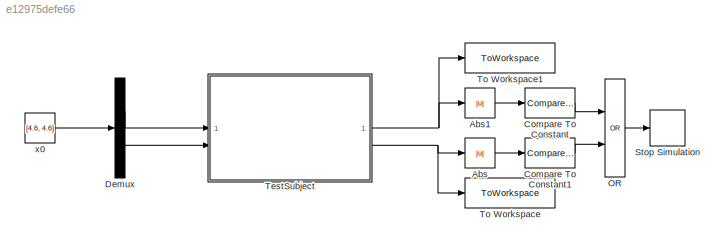
MODEL slx_e12975defe66
KIND model
CONFIG AbsTol = auto
CONFIG EnableMultiTasking = off
CONFIG FixedStep = auto
CONFIG MaxStep = auto
CONFIG MinStep = auto
CONFIG RelTol = 1e-3
CONFIG SampleTimeConstraint = Unconstrained
CONFIG SolverName = ode23t
CONFIG StartTime = 0.0
CONFIG StopTime = 10
BLOCK [Abs] Abs
  SaturateOnIntegerOverflow = off
BLOCK [Abs] Abs1
  SaturateOnIntegerOverflow = off
BLOCK [Reference] Compare To Constant  REF=simulink/Logic and Bit
Operations/Compare
To Constant
  SourceBlock = simulink/Logic and Bit\nOperations/Compare\nTo Constant
  SourceType = Compare To Constant
BLOCK [Reference] Compare To Constant1  REF=simulink/Logic and Bit
Operations/Compare
To Constant
  SourceBlock = simulink/Logic and Bit\nOperations/Compare\nTo Constant
  SourceType = Compare To Constant
BLOCK [Demux] Demux
  Outputs = 2
BLOCK [Logic] OR
  AllPortsSameDT = off
  Operator = OR
  OutDataTypeStr = boolean
BLOCK [Stop] Stop Simulation
BLOCK [SubSystem] TestSubject
  ReferencedSubsystem = VanDerPol
BLOCK [ToWorkspace] To Workspace
  FixptAsFi = on
  MaxDataPoints = inf
  SampleTime = -1
  VariableName = x_dot
BLOCK [ToWorkspace] To Workspace1
  FixptAsFi = on
  MaxDataPoints = inf
  SampleTime = -1
  VariableName = x
BLOCK [Constant] x0
  Value = [4.6, 4.6]
  VectorParams1D = off
LINE Abs1:1 -> Compare To Constant:1
LINE Abs:1 -> Compare To Constant1:1
LINE Compare To Constant1:1 -> OR:2
LINE Compare To Constant:1 -> OR:1
LINE Demux:1 -> TestSubject:1
LINE Demux:2 -> TestSubject:2
LINE OR:1 -> Stop Simulation:1
NET TestSubject:1 -> Abs1:1, To Workspace1:1
NET TestSubject:2 -> Abs:1, To Workspace:1
LINE x0:1 -> Demux:1
note: NET lines group one-source signal fan-out (src -> all destinations, sorted); 1:1 wires keep LINE
